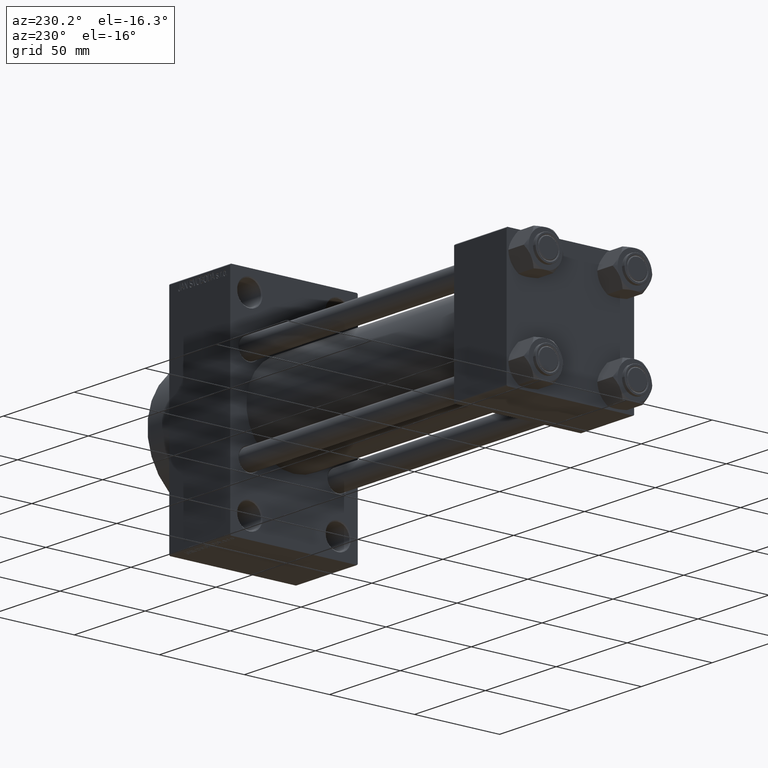
[diagram: clean part render]
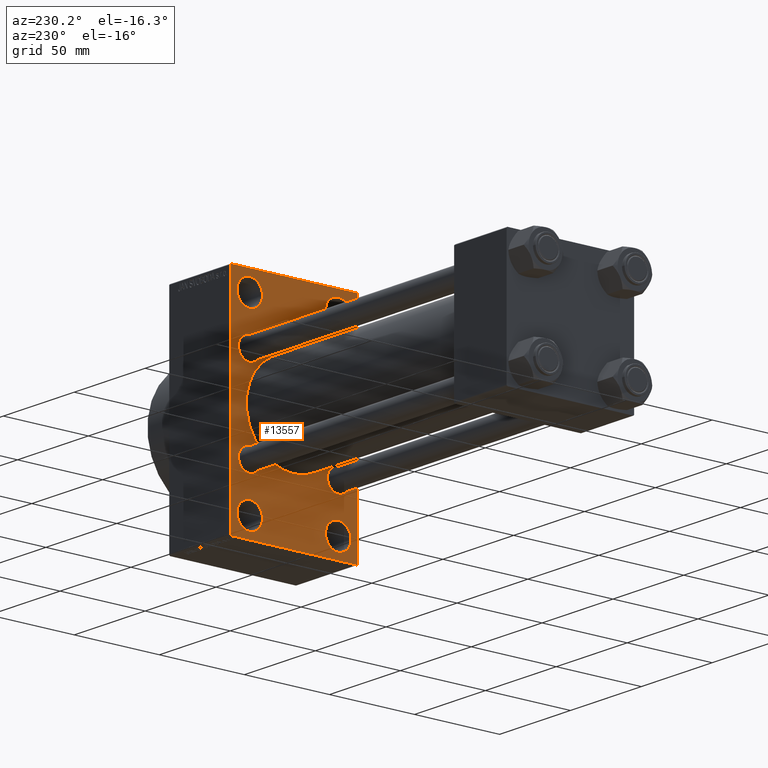
[diagram: same view with one face highlighted and labeled with its STEP entity id]
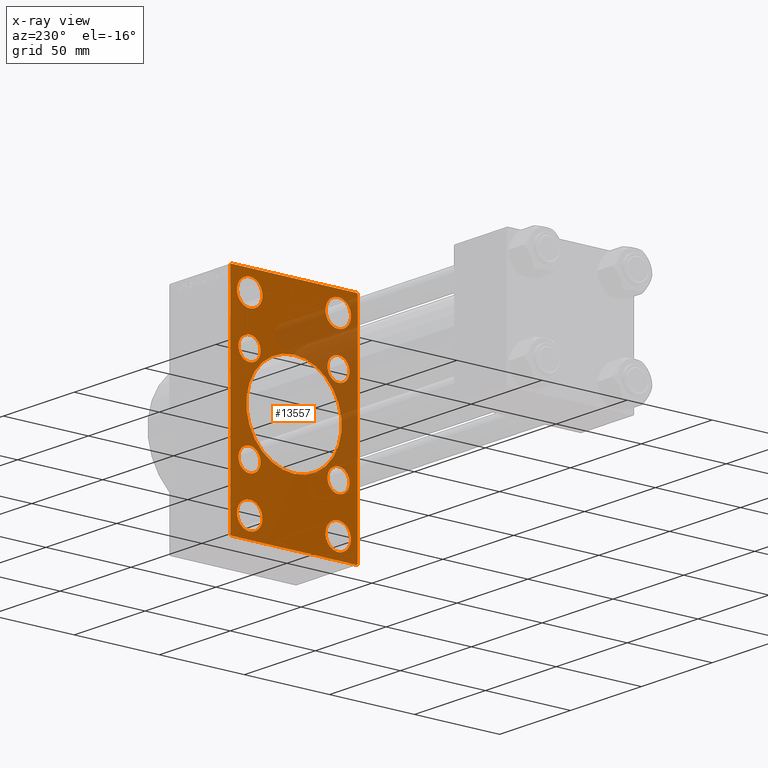
[diagram: x-ray of the same camera — body ghosted, the highlighted face saturated]
A machine part, auxiliary view. The second image highlights one B-rep face of the part: STEP entity #13557.
The next image is the same camera in x-ray: the body ghosted, the highlighted face saturated — about 24% of this face is hidden behind the body in this view.
In plain terms, the highlighted planar face has unit normal (-1, 0, 0).
Its self-contained STEP definition (entity closure, byte-faithful):
#815 = VERTEX_POINT ( 'NONE', #28546 ) ;
#887 = EDGE_LOOP ( 'NONE', ( #22718, #38782 ) ) ;
#1105 = DIRECTION ( 'NONE',  ( 0.000000000000000000, 0.000000000000000000, 1.000000000000000000 ) ) ;
#1453 = DIRECTION ( 'NONE',  ( 1.000000000000000000, -0.000000000000000000, 0.000000000000000000 ) ) ;
#1521 = CARTESIAN_POINT ( 'NONE',  ( 195.0000000000000000, 50.49999999999998579, 50.49999999999998579 ) ) ;
#1537 = VERTEX_POINT ( 'NONE', #31727 ) ;
#1650 = EDGE_CURVE ( 'NONE', #16286, #41353, #11438, .T. ) ;
#1687 = DIRECTION ( 'NONE',  ( 0.000000000000000000, 0.000000000000000000, 1.000000000000000000 ) ) ;
#1758 = DIRECTION ( 'NONE',  ( 0.000000000000000000, 0.7071067811865474617, -0.7071067811865474617 ) ) ;
#1899 = CARTESIAN_POINT ( 'NONE',  ( 195.0000000000000000, -2.602085213965210642E-15, 28.00000000000000000 ) ) ;
#2053 = CARTESIAN_POINT ( 'NONE',  ( 195.0000000000000000, 26.14999999999999858, -26.15000000000000213 ) ) ;
#2144 = EDGE_CURVE ( 'NONE', #44028, #815, #29035, .T. ) ;
#2273 = CARTESIAN_POINT ( 'NONE',  ( 195.0000000000000000, 37.00000000000000000, 63.99999999999998579 ) ) ;
#2649 = DIRECTION ( 'NONE',  ( 0.000000000000000000, 0.000000000000000000, 1.000000000000000000 ) ) ;
#2794 = AXIS2_PLACEMENT_3D ( 'NONE', #28691, #17941, #43492 ) ;
#2873 = DIRECTION ( 'NONE',  ( 0.000000000000000000, 0.000000000000000000, 1.000000000000000000 ) ) ;
#2957 = CARTESIAN_POINT ( 'NONE',  ( 195.0000000000000000, 50.49999999999948841, -50.50000000000088107 ) ) ;
#3111 = DIRECTION ( 'NONE',  ( 0.000000000000000000, -0.7071067811865573427, 0.7071067811865378028 ) ) ;
#3201 = VERTEX_POINT ( 'NONE', #16947 ) ;
#3667 = AXIS2_PLACEMENT_3D ( 'NONE', #2053, #9195, #13250 ) ;
#3732 = EDGE_CURVE ( 'NONE', #1537, #33758, #36470, .T. ) ;
#3777 = ORIENTED_EDGE ( 'NONE', *, *, #11504, .T. ) ;
#3792 = EDGE_LOOP ( 'NONE', ( #41489, #3777 ) ) ;
#3976 = CARTESIAN_POINT ( 'NONE',  ( 195.0000000000000000, 36.99999999999999289, -64.00000000000000000 ) ) ;
#4218 = EDGE_CURVE ( 'NONE', #11672, #1537, #41393, .T. ) ;
#4316 = DIRECTION ( 'NONE',  ( 1.000000000000000000, -0.000000000000000000, 0.000000000000000000 ) ) ;
#4366 = CARTESIAN_POINT ( 'NONE',  ( 195.0000000000000000, -2.602085213965210642E-15, 0.000000000000000000 ) ) ;
#4505 = EDGE_CURVE ( 'NONE', #32576, #9803, #25274, .T. ) ;
#4732 = EDGE_LOOP ( 'NONE', ( #37749, #26618 ) ) ;
#4898 = CARTESIAN_POINT ( 'NONE',  ( 195.0000000000000000, -26.14999999999999147, 19.65000000000000213 ) ) ;
#5085 = EDGE_CURVE ( 'NONE', #45073, #11939, #28719, .T. ) ;
#5100 = CARTESIAN_POINT ( 'NONE',  ( 195.0000000000000000, -37.49999999999999289, 63.99999999999997158 ) ) ;
#5213 = FACE_BOUND ( 'NONE', #5951, .T. ) ;
#5298 = EDGE_CURVE ( 'NONE', #3201, #24616, #14646, .T. ) ;
#5569 = AXIS2_PLACEMENT_3D ( 'NONE', #24725, #14458, #10875 ) ;
#5669 = DIRECTION ( 'NONE',  ( 1.000000000000000000, -0.000000000000000000, 0.000000000000000000 ) ) ;
#5686 = FACE_BOUND ( 'NONE', #34862, .T. ) ;
#5951 = EDGE_LOOP ( 'NONE', ( #9586, #14371 ) ) ;
#6659 = EDGE_CURVE ( 'NONE', #25796, #24690, #13139, .T. ) ;
#7796 = CARTESIAN_POINT ( 'NONE',  ( 195.0000000000000000, 26.14999999999999858, 19.64999999999999147 ) ) ;
#7838 = EDGE_CURVE ( 'NONE', #31332, #13799, #36059, .T. ) ;
#8623 = EDGE_CURVE ( 'NONE', #13799, #31332, #30771, .T. ) ;
#9195 = DIRECTION ( 'NONE',  ( 1.000000000000000000, -0.000000000000000000, 0.000000000000000000 ) ) ;
#9586 = ORIENTED_EDGE ( 'NONE', *, *, #39440, .T. ) ;
#9803 = VERTEX_POINT ( 'NONE', #39244 ) ;
#10157 = EDGE_CURVE ( 'NONE', #11672, #11939, #19386, .T. ) ;
#10255 = LINE ( 'NONE', #31761, #13810 ) ;
#10314 = DIRECTION ( 'NONE',  ( 1.000000000000000000, -0.000000000000000000, 0.000000000000000000 ) ) ;
#10824 = DIRECTION ( 'NONE',  ( -0.000000000000000000, -0.7071067811865573427, -0.7071067811865378028 ) ) ;
#10875 = DIRECTION ( 'NONE',  ( 0.000000000000000000, 0.000000000000000000, 1.000000000000000000 ) ) ;
#10990 = DIRECTION ( 'NONE',  ( 0.000000000000000000, 0.000000000000000000, 1.000000000000000000 ) ) ;
#10993 = EDGE_LOOP ( 'NONE', ( #17734, #44656 ) ) ;
#11273 = EDGE_CURVE ( 'NONE', #31990, #37827, #45327, .T. ) ;
#11438 = CIRCLE ( 'NONE', #45016, 28.00000000000000000 ) ;
#11504 = EDGE_CURVE ( 'NONE', #24690, #25796, #46855, .T. ) ;
#11672 = VERTEX_POINT ( 'NONE', #2273 ) ;
#11939 = VERTEX_POINT ( 'NONE', #24389 ) ;
#12206 = ORIENTED_EDGE ( 'NONE', *, *, #10157, .F. ) ;
#12221 = DIRECTION ( 'NONE',  ( 1.000000000000000000, 0.000000000000000000, 0.000000000000000000 ) ) ;
#12307 = CARTESIAN_POINT ( 'NONE',  ( 195.0000000000000000, -25.99999999999999645, -60.00000000000002842 ) ) ;
#12421 = ORIENTED_EDGE ( 'NONE', *, *, #4218, .T. ) ;
#12687 = CARTESIAN_POINT ( 'NONE',  ( 195.0000000000000000, -26.14999999999999147, 32.65000000000001990 ) ) ;
#13139 = CIRCLE ( 'NONE', #40635, 6.500000000000008882 ) ;
#13250 = DIRECTION ( 'NONE',  ( 0.000000000000000000, 0.000000000000000000, 1.000000000000000000 ) ) ;
#13427 = CARTESIAN_POINT ( 'NONE',  ( 195.0000000000000000, -25.99999999999999645, -52.49999999999999289 ) ) ;
#13557 = ADVANCED_FACE ( 'NONE', ( #5686, #37944, #5213, #34595, #16428, #24063, #34834, #45802, #38650, #47208 ), #39577, .T. ) ;
#13599 = DIRECTION ( 'NONE',  ( 0.000000000000000000, -1.000000000000000000, -1.850371707708594563E-16 ) ) ;
#13799 = VERTEX_POINT ( 'NONE', #7796 ) ;
#13810 = VECTOR ( 'NONE', #13599, 1000.000000000000000 ) ;
#14371 = ORIENTED_EDGE ( 'NONE', *, *, #5298, .T. ) ;
#14458 = DIRECTION ( 'NONE',  ( 1.000000000000000000, -0.000000000000000000, 0.000000000000000000 ) ) ;
#14646 = CIRCLE ( 'NONE', #37526, 7.500000000000034639 ) ;
#14728 = CARTESIAN_POINT ( 'NONE',  ( 195.0000000000000000, 37.50000000000000000, 63.99999999999998579 ) ) ;
#14869 = CIRCLE ( 'NONE', #41563, 7.500000000000034639 ) ;
#15271 = EDGE_LOOP ( 'NONE', ( #32833, #30146 ) ) ;
#15302 = VERTEX_POINT ( 'NONE', #24069 ) ;
#15438 = DIRECTION ( 'NONE',  ( 0.000000000000000000, -5.421010862427522170E-17, -1.000000000000000000 ) ) ;
#15620 = VECTOR ( 'NONE', #37139, 1000.000000000000000 ) ;
#15876 = CARTESIAN_POINT ( 'NONE',  ( 195.0000000000000000, 26.00000000000000000, -44.99999999999995737 ) ) ;
#16093 = ORIENTED_EDGE ( 'NONE', *, *, #21092, .T. ) ;
#16286 = VERTEX_POINT ( 'NONE', #1899 ) ;
#16428 = FACE_BOUND ( 'NONE', #3792, .T. ) ;
#16555 = CARTESIAN_POINT ( 'NONE',  ( 195.0000000000000000, -50.49999999999949551, -50.50000000000089528 ) ) ;
#16614 = CIRCLE ( 'NONE', #3667, 6.500000000000008882 ) ;
#16649 = AXIS2_PLACEMENT_3D ( 'NONE', #18870, #32734, #40850 ) ;
#16713 = CARTESIAN_POINT ( 'NONE',  ( 195.0000000000000000, 26.00000000000000000, 52.49999999999999289 ) ) ;
#16793 = DIRECTION ( 'NONE',  ( 1.000000000000000000, -0.000000000000000000, 0.000000000000000000 ) ) ;
#16847 = DIRECTION ( 'NONE',  ( 1.000000000000000000, -0.000000000000000000, 0.000000000000000000 ) ) ;
#16853 = VECTOR ( 'NONE', #15438, 1000.000000000000000 ) ;
#16947 = CARTESIAN_POINT ( 'NONE',  ( 195.0000000000000000, 26.00000000000000000, -60.00000000000002842 ) ) ;
#16953 = DIRECTION ( 'NONE',  ( 1.000000000000000000, -0.000000000000000000, 0.000000000000000000 ) ) ;
#17132 = DIRECTION ( 'NONE',  ( -1.000000000000000000, 0.000000000000000000, -0.000000000000000000 ) ) ;
#17562 = CIRCLE ( 'NONE', #23646, 7.500000000000034639 ) ;
#17694 = ORIENTED_EDGE ( 'NONE', *, *, #3732, .T. ) ;
#17734 = ORIENTED_EDGE ( 'NONE', *, *, #46380, .T. ) ;
#17758 = VERTEX_POINT ( 'NONE', #37118 ) ;
#17941 = DIRECTION ( 'NONE',  ( 1.000000000000000000, -0.000000000000000000, 0.000000000000000000 ) ) ;
#18023 = CIRCLE ( 'NONE', #32519, 7.500000000000034639 ) ;
#18096 = DIRECTION ( 'NONE',  ( 0.000000000000000000, 0.000000000000000000, -1.000000000000000000 ) ) ;
#18641 = EDGE_LOOP ( 'NONE', ( #38221, #23190, #33461, #25972, #12206, #12421, #17694, #30150 ) ) ;
#18870 = CARTESIAN_POINT ( 'NONE',  ( 195.0000000000000000, -26.14999999999999147, -26.15000000000000924 ) ) ;
#19178 = VECTOR ( 'NONE', #1758, 1000.000000000000114 ) ;
#19386 = LINE ( 'NONE', #41352, #25442 ) ;
#19574 = VERTEX_POINT ( 'NONE', #30417 ) ;
#19687 = CARTESIAN_POINT ( 'NONE',  ( 195.0000000000000000, 37.49999999999999289, -63.50000000000001421 ) ) ;
#19897 = LINE ( 'NONE', #16555, #28198 ) ;
#20629 = ORIENTED_EDGE ( 'NONE', *, *, #21994, .T. ) ;
#20638 = AXIS2_PLACEMENT_3D ( 'NONE', #35201, #16793, #27547 ) ;
#20686 = EDGE_LOOP ( 'NONE', ( #28502, #41136 ) ) ;
#20866 = EDGE_CURVE ( 'NONE', #33758, #28099, #43543, .T. ) ;
#21092 = EDGE_CURVE ( 'NONE', #22171, #30173, #18023, .T. ) ;
#21242 = DIRECTION ( 'NONE',  ( 1.000000000000000000, -0.000000000000000000, 0.000000000000000000 ) ) ;
#21413 = DIRECTION ( 'NONE',  ( -0.000000000000000000, 0.000000000000000000, 1.000000000000000000 ) ) ;
#21454 = AXIS2_PLACEMENT_3D ( 'NONE', #16713, #16953, #2873 ) ;
#21994 = EDGE_CURVE ( 'NONE', #30173, #22171, #23359, .T. ) ;
#22171 = VERTEX_POINT ( 'NONE', #31524 ) ;
#22718 = ORIENTED_EDGE ( 'NONE', *, *, #1650, .T. ) ;
#22858 = CARTESIAN_POINT ( 'NONE',  ( 195.0000000000000000, -26.14999999999999147, -32.65000000000001990 ) ) ;
#22948 = DIRECTION ( 'NONE',  ( 0.000000000000000000, -1.000000000000000000, -1.850371707708594563E-16 ) ) ;
#23145 = DIRECTION ( 'NONE',  ( 0.000000000000000000, 0.000000000000000000, 1.000000000000000000 ) ) ;
#23190 = ORIENTED_EDGE ( 'NONE', *, *, #30120, .T. ) ;
#23359 = CIRCLE ( 'NONE', #2794, 7.500000000000034639 ) ;
#23453 = CIRCLE ( 'NONE', #37229, 6.500000000000008882 ) ;
#23646 = AXIS2_PLACEMENT_3D ( 'NONE', #13427, #10314, #27994 ) ;
#24063 = FACE_BOUND ( 'NONE', #20686, .T. ) ;
#24069 = CARTESIAN_POINT ( 'NONE',  ( 195.0000000000000000, 26.14999999999999858, -19.64999999999999503 ) ) ;
#24389 = CARTESIAN_POINT ( 'NONE',  ( 195.0000000000000000, -36.99999999999992895, 63.99999999999997158 ) ) ;
#24525 = DIRECTION ( 'NONE',  ( 1.000000000000000000, -0.000000000000000000, 0.000000000000000000 ) ) ;
#24610 = AXIS2_PLACEMENT_3D ( 'NONE', #44186, #24525, #46045 ) ;
#24616 = VERTEX_POINT ( 'NONE', #15876 ) ;
#24690 = VERTEX_POINT ( 'NONE', #4898 ) ;
#24725 = CARTESIAN_POINT ( 'NONE',  ( 195.0000000000000000, 26.14999999999999858, 26.15000000000000213 ) ) ;
#24887 = CARTESIAN_POINT ( 'NONE',  ( 195.0000000000000000, -50.49999999999969447, 50.50000000000039080 ) ) ;
#25235 = EDGE_CURVE ( 'NONE', #15302, #17758, #23453, .T. ) ;
#25274 = CIRCLE ( 'NONE', #21454, 7.500000000000034639 ) ;
#25442 = VECTOR ( 'NONE', #22948, 1000.000000000000000 ) ;
#25574 = EDGE_CURVE ( 'NONE', #17758, #15302, #16614, .T. ) ;
#25598 = CARTESIAN_POINT ( 'NONE',  ( 195.0000000000000000, -25.99999999999999645, -44.99999999999995737 ) ) ;
#25796 = VERTEX_POINT ( 'NONE', #12687 ) ;
#25896 = EDGE_CURVE ( 'NONE', #815, #44028, #31897, .T. ) ;
#25972 = ORIENTED_EDGE ( 'NONE', *, *, #5085, .T. ) ;
#26324 = DIRECTION ( 'NONE',  ( 0.000000000000000000, 0.000000000000000000, -1.000000000000000000 ) ) ;
#26364 = LINE ( 'NONE', #5100, #15620 ) ;
#26381 = EDGE_CURVE ( 'NONE', #41353, #16286, #40320, .T. ) ;
#26618 = ORIENTED_EDGE ( 'NONE', *, *, #25574, .T. ) ;
#27547 = DIRECTION ( 'NONE',  ( 0.000000000000000000, 0.000000000000000000, 1.000000000000000000 ) ) ;
#27638 = DIRECTION ( 'NONE',  ( 0.000000000000000000, 0.000000000000000000, 1.000000000000000000 ) ) ;
#27994 = DIRECTION ( 'NONE',  ( 0.000000000000000000, 0.000000000000000000, 1.000000000000000000 ) ) ;
#28011 = DIRECTION ( 'NONE',  ( -0.000000000000000000, 0.7071067811865524577, 0.7071067811865426878 ) ) ;
#28099 = VERTEX_POINT ( 'NONE', #3976 ) ;
#28198 = VECTOR ( 'NONE', #3111, 1000.000000000000000 ) ;
#28502 = ORIENTED_EDGE ( 'NONE', *, *, #7838, .T. ) ;
#28546 = CARTESIAN_POINT ( 'NONE',  ( 195.0000000000000000, -26.14999999999999147, -19.65000000000000213 ) ) ;
#28691 = CARTESIAN_POINT ( 'NONE',  ( 195.0000000000000000, -25.99999999999999645, 52.50000000000000000 ) ) ;
#28719 = LINE ( 'NONE', #24887, #29892 ) ;
#28832 = CARTESIAN_POINT ( 'NONE',  ( 195.0000000000000000, 0.000000000000000000, 0.000000000000000000 ) ) ;
#29035 = CIRCLE ( 'NONE', #20638, 6.500000000000008882 ) ;
#29083 = CARTESIAN_POINT ( 'NONE',  ( 195.0000000000000000, 26.00000000000000000, 44.99999999999995737 ) ) ;
#29142 = DIRECTION ( 'NONE',  ( 1.000000000000000000, -0.000000000000000000, 0.000000000000000000 ) ) ;
#29310 = AXIS2_PLACEMENT_3D ( 'NONE', #34163, #1453, #1687 ) ;
#29517 = EDGE_LOOP ( 'NONE', ( #41167, #31225 ) ) ;
#29746 = DIRECTION ( 'NONE',  ( 1.000000000000000000, -0.000000000000000000, 0.000000000000000000 ) ) ;
#29844 = CARTESIAN_POINT ( 'NONE',  ( 195.0000000000000000, -25.99999999999999645, 60.00000000000003553 ) ) ;
#29892 = VECTOR ( 'NONE', #28011, 1000.000000000000000 ) ;
#30120 = EDGE_CURVE ( 'NONE', #41966, #19574, #19897, .T. ) ;
#30146 = ORIENTED_EDGE ( 'NONE', *, *, #2144, .T. ) ;
#30150 = ORIENTED_EDGE ( 'NONE', *, *, #20866, .T. ) ;
#30173 = VERTEX_POINT ( 'NONE', #29844 ) ;
#30417 = CARTESIAN_POINT ( 'NONE',  ( 195.0000000000000000, -37.49999999999999289, -63.50000000000002842 ) ) ;
#30771 = CIRCLE ( 'NONE', #39157, 6.500000000000008882 ) ;
#31225 = ORIENTED_EDGE ( 'NONE', *, *, #35759, .T. ) ;
#31332 = VERTEX_POINT ( 'NONE', #42749 ) ;
#31431 = DIRECTION ( 'NONE',  ( 0.000000000000000000, 0.000000000000000000, 1.000000000000000000 ) ) ;
#31524 = CARTESIAN_POINT ( 'NONE',  ( 195.0000000000000000, -25.99999999999999645, 44.99999999999996447 ) ) ;
#31727 = CARTESIAN_POINT ( 'NONE',  ( 195.0000000000000000, 37.50000000000000000, 63.49999999999998579 ) ) ;
#31761 = CARTESIAN_POINT ( 'NONE',  ( 195.0000000000000000, 37.49999999999999289, -64.00000000000000000 ) ) ;
#31897 = CIRCLE ( 'NONE', #16649, 6.500000000000008882 ) ;
#31990 = VERTEX_POINT ( 'NONE', #25598 ) ;
#32011 = CARTESIAN_POINT ( 'NONE',  ( 195.0000000000000000, 26.00000000000000000, -52.49999999999999289 ) ) ;
#32519 = AXIS2_PLACEMENT_3D ( 'NONE', #44893, #4316, #23145 ) ;
#32576 = VERTEX_POINT ( 'NONE', #29083 ) ;
#32734 = DIRECTION ( 'NONE',  ( 1.000000000000000000, -0.000000000000000000, 0.000000000000000000 ) ) ;
#32833 = ORIENTED_EDGE ( 'NONE', *, *, #25896, .T. ) ;
#33384 = CARTESIAN_POINT ( 'NONE',  ( 195.0000000000000000, -36.99999999999999289, -64.00000000000001421 ) ) ;
#33461 = ORIENTED_EDGE ( 'NONE', *, *, #45076, .F. ) ;
#33758 = VERTEX_POINT ( 'NONE', #19687 ) ;
#33846 = AXIS2_PLACEMENT_3D ( 'NONE', #28832, #17132, #21413 ) ;
#34163 = CARTESIAN_POINT ( 'NONE',  ( 195.0000000000000000, -26.14999999999999147, 26.15000000000000924 ) ) ;
#34595 = FACE_BOUND ( 'NONE', #10993, .T. ) ;
#34834 = FACE_BOUND ( 'NONE', #4732, .T. ) ;
#34862 = EDGE_LOOP ( 'NONE', ( #20629, #16093 ) ) ;
#35201 = CARTESIAN_POINT ( 'NONE',  ( 195.0000000000000000, -26.14999999999999147, -26.15000000000000924 ) ) ;
#35759 = EDGE_CURVE ( 'NONE', #37827, #31990, #17562, .T. ) ;
#36059 = CIRCLE ( 'NONE', #5569, 6.500000000000008882 ) ;
#36167 = EDGE_CURVE ( 'NONE', #28099, #41966, #10255, .T. ) ;
#36470 = LINE ( 'NONE', #14728, #16853 ) ;
#36502 = AXIS2_PLACEMENT_3D ( 'NONE', #4366, #12221, #26324 ) ;
#37118 = CARTESIAN_POINT ( 'NONE',  ( 195.0000000000000000, 26.14999999999999858, -32.65000000000001279 ) ) ;
#37139 = DIRECTION ( 'NONE',  ( 0.000000000000000000, 0.000000000000000000, -1.000000000000000000 ) ) ;
#37229 = AXIS2_PLACEMENT_3D ( 'NONE', #38397, #5669, #27638 ) ;
#37426 = CARTESIAN_POINT ( 'NONE',  ( 195.0000000000000000, 26.14999999999999858, 26.15000000000000213 ) ) ;
#37526 = AXIS2_PLACEMENT_3D ( 'NONE', #32011, #21242, #2649 ) ;
#37553 = CIRCLE ( 'NONE', #45170, 7.500000000000034639 ) ;
#37628 = CARTESIAN_POINT ( 'NONE',  ( 195.0000000000000000, 26.00000000000000000, -52.49999999999999289 ) ) ;
#37659 = DIRECTION ( 'NONE',  ( 0.000000000000000000, 0.000000000000000000, 1.000000000000000000 ) ) ;
#37749 = ORIENTED_EDGE ( 'NONE', *, *, #25235, .T. ) ;
#37827 = VERTEX_POINT ( 'NONE', #12307 ) ;
#37944 = FACE_BOUND ( 'NONE', #29517, .T. ) ;
#38060 = CARTESIAN_POINT ( 'NONE',  ( 195.0000000000000000, -37.49999999999999289, 63.49999999999991473 ) ) ;
#38221 = ORIENTED_EDGE ( 'NONE', *, *, #36167, .T. ) ;
#38279 = CARTESIAN_POINT ( 'NONE',  ( 195.0000000000000000, 8.269258236473784371E-16, -28.00000000000000000 ) ) ;
#38397 = CARTESIAN_POINT ( 'NONE',  ( 195.0000000000000000, 26.14999999999999858, -26.15000000000000213 ) ) ;
#38650 = FACE_BOUND ( 'NONE', #887, .T. ) ;
#38782 = ORIENTED_EDGE ( 'NONE', *, *, #26381, .T. ) ;
#39157 = AXIS2_PLACEMENT_3D ( 'NONE', #37426, #41935, #37659 ) ;
#39244 = CARTESIAN_POINT ( 'NONE',  ( 195.0000000000000000, 26.00000000000000000, 60.00000000000002842 ) ) ;
#39440 = EDGE_CURVE ( 'NONE', #24616, #3201, #37553, .T. ) ;
#39577 = PLANE ( 'NONE',  #33846 ) ;
#40320 = CIRCLE ( 'NONE', #36502, 28.00000000000000000 ) ;
#40635 = AXIS2_PLACEMENT_3D ( 'NONE', #42414, #16847, #31431 ) ;
#40850 = DIRECTION ( 'NONE',  ( 0.000000000000000000, 0.000000000000000000, 1.000000000000000000 ) ) ;
#41136 = ORIENTED_EDGE ( 'NONE', *, *, #8623, .T. ) ;
#41167 = ORIENTED_EDGE ( 'NONE', *, *, #11273, .T. ) ;
#41352 = CARTESIAN_POINT ( 'NONE',  ( 195.0000000000000000, 37.50000000000000000, 63.99999999999998579 ) ) ;
#41353 = VERTEX_POINT ( 'NONE', #38279 ) ;
#41393 = LINE ( 'NONE', #1521, #19178 ) ;
#41489 = ORIENTED_EDGE ( 'NONE', *, *, #6659, .T. ) ;
#41563 = AXIS2_PLACEMENT_3D ( 'NONE', #43708, #29142, #10990 ) ;
#41935 = DIRECTION ( 'NONE',  ( 1.000000000000000000, -0.000000000000000000, 0.000000000000000000 ) ) ;
#41966 = VERTEX_POINT ( 'NONE', #33384 ) ;
#42414 = CARTESIAN_POINT ( 'NONE',  ( 195.0000000000000000, -26.14999999999999147, 26.15000000000000924 ) ) ;
#42749 = CARTESIAN_POINT ( 'NONE',  ( 195.0000000000000000, 26.14999999999999858, 32.65000000000001990 ) ) ;
#42937 = CARTESIAN_POINT ( 'NONE',  ( 195.0000000000000000, -2.602085213965210642E-15, 0.000000000000000000 ) ) ;
#43492 = DIRECTION ( 'NONE',  ( 0.000000000000000000, 0.000000000000000000, 1.000000000000000000 ) ) ;
#43543 = LINE ( 'NONE', #2957, #45464 ) ;
#43708 = CARTESIAN_POINT ( 'NONE',  ( 195.0000000000000000, 26.00000000000000000, 52.49999999999999289 ) ) ;
#44028 = VERTEX_POINT ( 'NONE', #22858 ) ;
#44186 = CARTESIAN_POINT ( 'NONE',  ( 195.0000000000000000, -25.99999999999999645, -52.49999999999999289 ) ) ;
#44656 = ORIENTED_EDGE ( 'NONE', *, *, #4505, .T. ) ;
#44893 = CARTESIAN_POINT ( 'NONE',  ( 195.0000000000000000, -25.99999999999999645, 52.50000000000000000 ) ) ;
#45016 = AXIS2_PLACEMENT_3D ( 'NONE', #42937, #46752, #18096 ) ;
#45073 = VERTEX_POINT ( 'NONE', #38060 ) ;
#45076 = EDGE_CURVE ( 'NONE', #45073, #19574, #26364, .T. ) ;
#45170 = AXIS2_PLACEMENT_3D ( 'NONE', #37628, #29746, #1105 ) ;
#45327 = CIRCLE ( 'NONE', #24610, 7.500000000000034639 ) ;
#45464 = VECTOR ( 'NONE', #10824, 1000.000000000000000 ) ;
#45802 = FACE_BOUND ( 'NONE', #15271, .T. ) ;
#46045 = DIRECTION ( 'NONE',  ( 0.000000000000000000, 0.000000000000000000, 1.000000000000000000 ) ) ;
#46380 = EDGE_CURVE ( 'NONE', #9803, #32576, #14869, .T. ) ;
#46752 = DIRECTION ( 'NONE',  ( 1.000000000000000000, 0.000000000000000000, 0.000000000000000000 ) ) ;
#46855 = CIRCLE ( 'NONE', #29310, 6.500000000000008882 ) ;
#47208 = FACE_OUTER_BOUND ( 'NONE', #18641, .T. ) ;